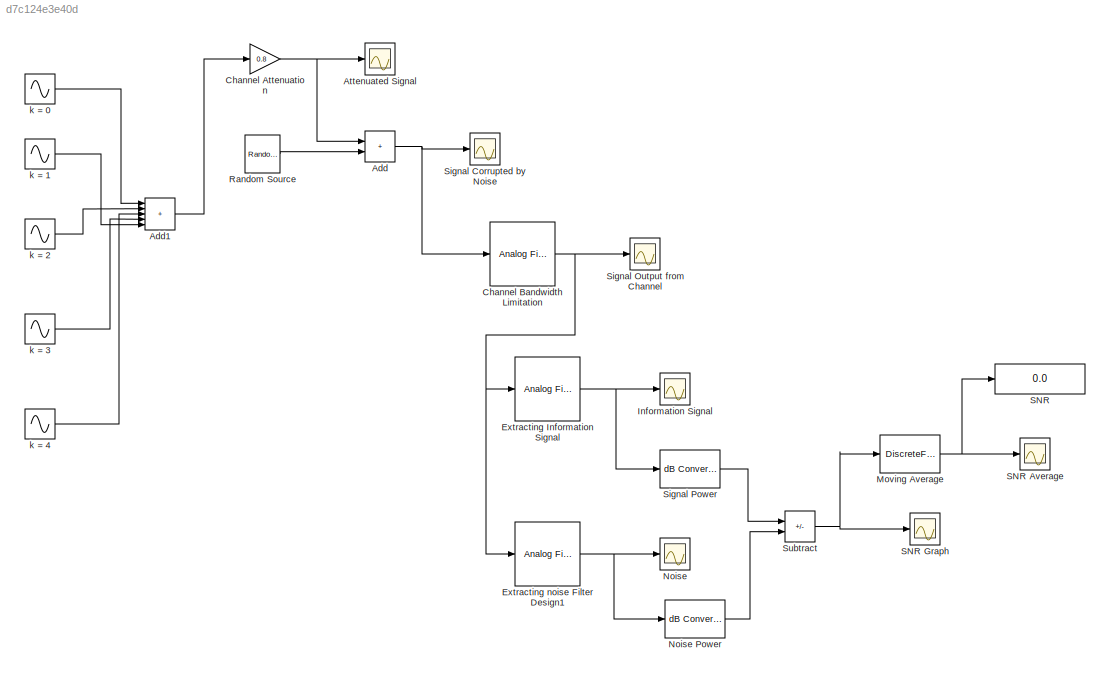
MODEL slx_d7c124e3e40d
KIND model
CONFIG AbsTol = auto
CONFIG EnableMultiTasking = off
CONFIG FixedStep = auto
CONFIG MaxStep = auto
CONFIG MinStep = auto
CONFIG RelTol = 1e-3
CONFIG SampleTimeConstraint = Unconstrained
CONFIG SolverName = VariableStepAuto
CONFIG StartTime = 0.0
CONFIG StopTime = 20
BLOCK [Sum] Add
  IconShape = rectangular
BLOCK [Sum] Add1
  IconShape = rectangular
  Inputs = +++++
BLOCK [Scope] Attenuated Signal
  Floating = off
  NumInputPorts = 1
  ScopeSpecificationString = Simulink.scopes.TimeScopeBlockCfg('CurrentConfiguration', extmgr.ConfigurationSet(extmgr.Configuration('Core','General UI',true),extmgr.Configuration('Core','Source UI',true),extmgr.Configuration('Sources','WiredSimulink',true,'DataLoggingVariableName','ScopeData6'),extmgr.Configuration('Visuals','Time Domain',true,'SerializedDisplays',{struct('MinYLimReal','-29.55934','MaxYLimReal','29.5593','YLa...<+1438ch>
BLOCK [Gain] Channel Attenuation
  Gain = 0.8
BLOCK [Reference] Channel Bandwidth Limitation  REF=dspfdesign/Analog
Filter Design
  SourceBlock = dspfdesign/Analog\nFilter Design
  SourceType = Analog Filter Design
BLOCK [Reference] Extracting Information Signal  REF=dspfdesign/Analog
Filter Design
  SourceBlock = dspfdesign/Analog\nFilter Design
  SourceType = Analog Filter Design
BLOCK [Reference] Extracting noise Filter Design1  REF=dspfdesign/Analog
Filter Design
  SourceBlock = dspfdesign/Analog\nFilter Design
  SourceType = Analog Filter Design
BLOCK [Scope] Information Signal
  Floating = off
  NumInputPorts = 1
  ScopeSpecificationString = Simulink.scopes.TimeScopeBlockCfg('CurrentConfiguration', extmgr.ConfigurationSet(extmgr.Configuration('Core','General UI',true),extmgr.Configuration('Core','Source UI',true),extmgr.Configuration('Sources','WiredSimulink',true,'DataLoggingVariableName','ScopeData3'),extmgr.Configuration('Visuals','Time Domain',true),extmgr.Configuration('Tools','Plot Navigation',true),extmgr.Configuration('Tools',...<+40ch>
BLOCK [DiscreteFir] Moving Average
  Coefficients = ones(1,1000)/1000
  InputPortMap = u0
  OutputPortMap = o0
BLOCK [Scope] Noise
  Floating = off
  NumInputPorts = 1
  ScopeSpecificationString = Simulink.scopes.TimeScopeBlockCfg('CurrentConfiguration', extmgr.ConfigurationSet(extmgr.Configuration('Core','General UI',true),extmgr.Configuration('Core','Source UI',true),extmgr.Configuration('Sources','WiredSimulink',true,'DataLoggingVariableName','ScopeData2'),extmgr.Configuration('Visuals','Time Domain',true,'SerializedDisplays',{struct('MinYLimReal','-5.03519','MaxYLimReal','8.36656','YLab...<+1419ch>
BLOCK [Reference] Noise Power  REF=dspmathops/dB Conversion
  SourceBlock = dspmathops/dB Conversion
  SourceType = dB Conversion
BLOCK [Reference] Random Source  REF=dspsrcs4/Random
Source
  SourceBlock = dspsrcs4/Random\nSource
  SourceType = Random Source
  UserDataPersistent = on
BLOCK [Display] SNR
  Decimation = 1
BLOCK [Scope] SNR Average
  Floating = off
  NumInputPorts = 1
  ScopeSpecificationString = Simulink.scopes.TimeScopeBlockCfg('CurrentConfiguration', extmgr.ConfigurationSet(extmgr.Configuration('Core','General UI',true),extmgr.Configuration('Core','Source UI',true),extmgr.Configuration('Sources','WiredSimulink',true),extmgr.Configuration('Visuals','Time Domain',true,'SerializedDisplays',{struct('MinYLimReal','-88.71832','MaxYLimReal','33.49063','YLabelReal','','MinYLimMag','0.00000','Ma...<+1369ch>
BLOCK [Scope] SNR Graph
  Floating = off
  NumInputPorts = 1
  ScopeSpecificationString = Simulink.scopes.TimeScopeBlockCfg('CurrentConfiguration', extmgr.ConfigurationSet(extmgr.Configuration('Core','General UI',true),extmgr.Configuration('Core','Source UI',true),extmgr.Configuration('Sources','WiredSimulink',true,'DataLoggingVariableName','ScopeData1'),extmgr.Configuration('Visuals','Time Domain',true,'SerializedDisplays',{struct('MinYLimReal','-1202.94435','MaxYLimReal','271.14532',...<+1416ch>
BLOCK [Scope] Signal Corrupted by Noise
  Floating = off
  NumInputPorts = 1
  ScopeSpecificationString = Simulink.scopes.TimeScopeBlockCfg('CurrentConfiguration', extmgr.ConfigurationSet(extmgr.Configuration('Core','General UI',true),extmgr.Configuration('Core','Source UI',true),extmgr.Configuration('Sources','WiredSimulink',true,'DataLoggingVariableName','ScopeData5'),extmgr.Configuration('Visuals','Time Domain',true),extmgr.Configuration('Tools','Plot Navigation',true),extmgr.Configuration('Tools',...<+40ch>
BLOCK [Scope] Signal Output from Channel
  Floating = off
  NumInputPorts = 1
  ScopeSpecificationString = Simulink.scopes.TimeScopeBlockCfg('CurrentConfiguration', extmgr.ConfigurationSet(extmgr.Configuration('Core','General UI',true),extmgr.Configuration('Core','Source UI',true),extmgr.Configuration('Sources','WiredSimulink',true,'DataLoggingVariableName','ScopeData4'),extmgr.Configuration('Visuals','Time Domain',true),extmgr.Configuration('Tools','Plot Navigation',true),extmgr.Configuration('Tools',...<+40ch>
BLOCK [Reference] Signal Power  REF=dspmathops/dB Conversion
  SourceBlock = dspmathops/dB Conversion
  SourceType = dB Conversion
BLOCK [Sum] Subtract
  IconShape = rectangular
  Inputs = +-
BLOCK [Sin] k = 0
  Amplitude = 10
  Frequency = 200
  SampleTime = 0.001
BLOCK [Sin] k = 1
  Amplitude = 8
  Frequency = 220
  SampleTime = 0.001
BLOCK [Sin] k = 2
  Amplitude = 6
  Frequency = 240
  SampleTime = 0.001
BLOCK [Sin] k = 3
  Amplitude = 4
  Frequency = 260
  SampleTime = 0.001
BLOCK [Sin] k = 4
  Amplitude = 2
  Frequency = 280
  SampleTime = 0.001
LINE Add1:1 -> Channel Attenuation:1
NET Add:1 -> Channel Bandwidth Limitation:1, Signal Corrupted by Noise:1
NET Channel Attenuation:1 -> Add:1, Attenuated Signal:1
NET Channel Bandwidth Limitation:1 -> Extracting Information Signal:1, Extracting noise Filter Design1:1, Signal Output from Channel:1
NET Extracting Information Signal:1 -> Information Signal:1, Signal Power:1
NET Extracting noise Filter Design1:1 -> Noise Power:1, Noise:1
NET Moving Average:1 -> SNR Average:1, SNR:1
LINE Noise Power:1 -> Subtract:2
LINE Random Source:1 -> Add:2
LINE Signal Power:1 -> Subtract:1
NET Subtract:1 -> Moving Average:1, SNR Graph:1
LINE k = 0:1 -> Add1:1
LINE k = 1:1 -> Add1:5
LINE k = 2:1 -> Add1:2
LINE k = 3:1 -> Add1:4
LINE k = 4:1 -> Add1:3
note: NET lines group one-source signal fan-out (src -> all destinations, sorted); 1:1 wires keep LINE
